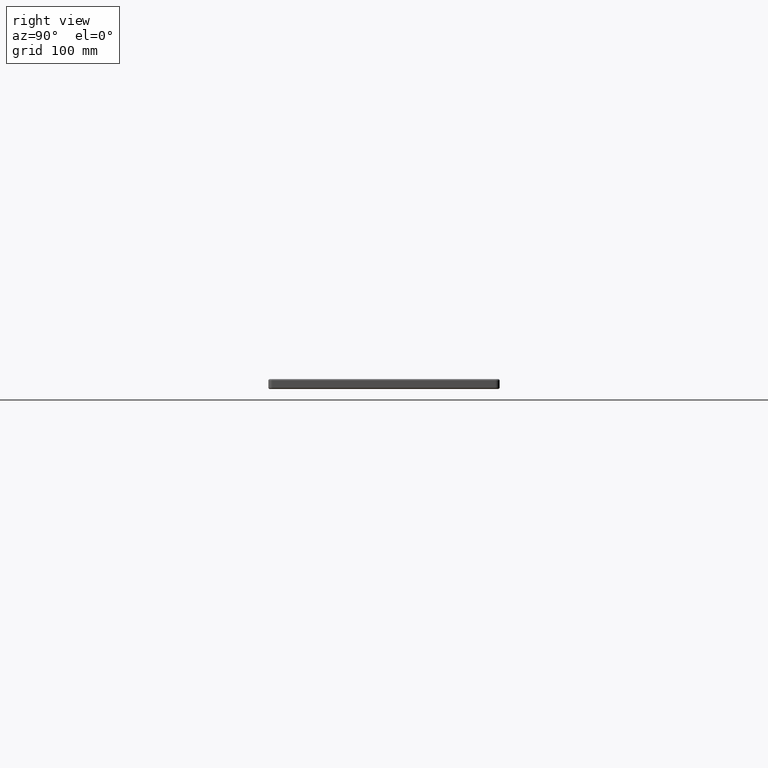
[diagram: clean part render]
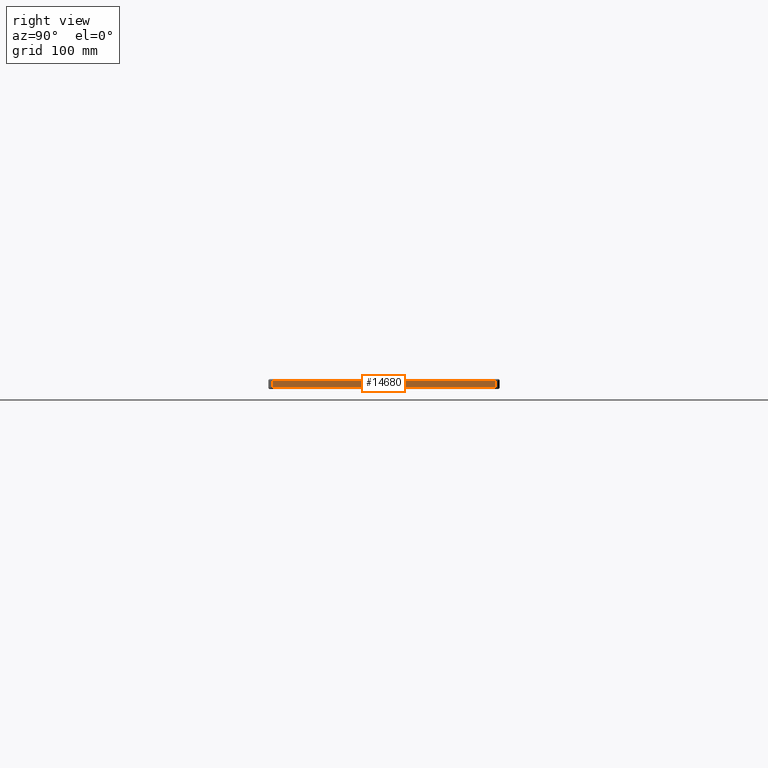
[diagram: same view with one face highlighted and labeled with its STEP entity id]
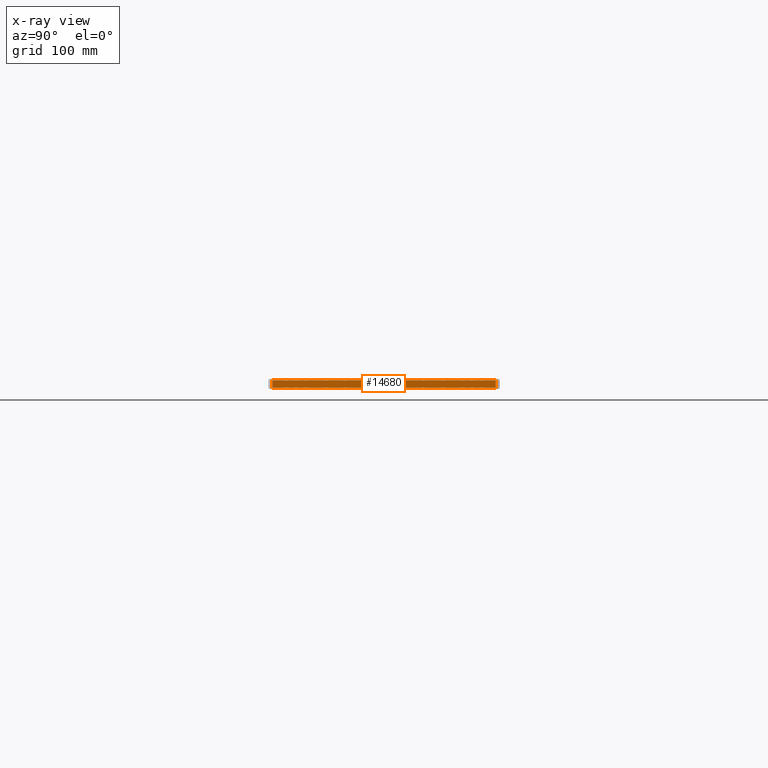
[diagram: x-ray of the same camera — body ghosted, the highlighted face saturated]
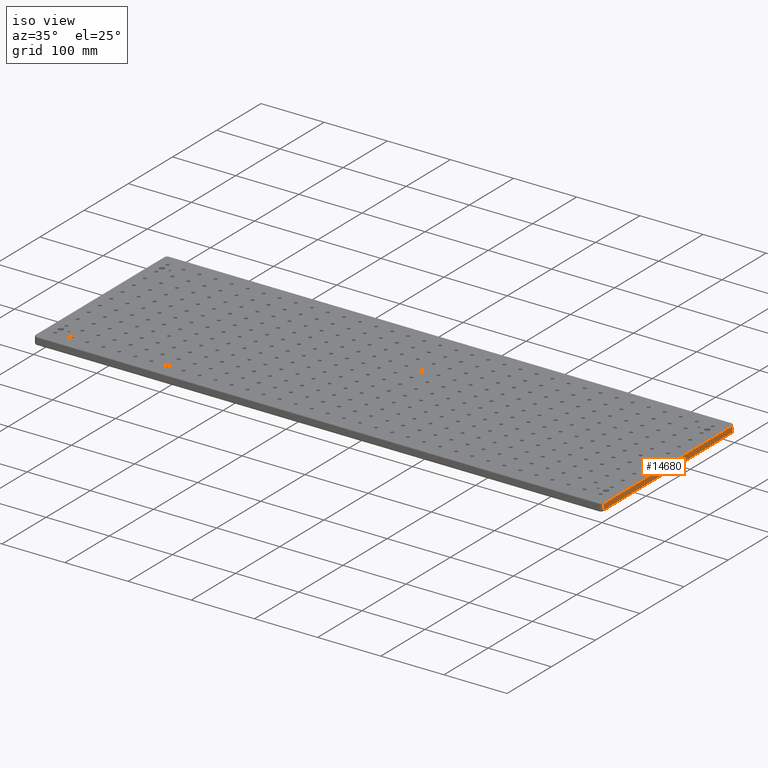
[diagram: same view with one face highlighted and labeled with its STEP entity id]
A machine part, right view. The second image highlights one B-rep face of the part: STEP entity #14680.
The next image is the same camera in x-ray: the body ghosted, the highlighted face saturated — about 0% of this face is hidden behind the body in this view.
A second angle (iso view) of the same face is appended — the face is thin or edge-on in the first view.
In plain terms, the highlighted planar face has unit normal (1, 0, 0).
Its self-contained STEP definition (entity closure, byte-faithful):
#648 = ORIENTED_EDGE ( 'NONE', *, *, #9998, .T. ) ;
#2020 = LINE ( 'NONE', #21178, #11802 ) ;
#2578 = EDGE_CURVE ( 'NONE', #16398, #12156, #2020, .T. ) ;
#2893 = DIRECTION ( 'NONE',  ( 0.0000000000000000000, -0.0000000000000000000, -1.000000000000000000 ) ) ;
#4339 = VERTEX_POINT ( 'NONE', #12115 ) ;
#5405 = VECTOR ( 'NONE', #2893, 1000.000000000000000 ) ;
#6189 = EDGE_LOOP ( 'NONE', ( #26241, #28470, #648, #21658 ) ) ;
#8838 = EDGE_CURVE ( 'NONE', #4339, #20261, #27867, .T. ) ;
#8998 = CARTESIAN_POINT ( 'NONE',  ( 900.0000000000000000, 294.9999999999999400, -2.000000000000000000 ) ) ;
#9998 = EDGE_CURVE ( 'NONE', #20261, #16398, #25410, .T. ) ;
#10849 = CARTESIAN_POINT ( 'NONE',  ( 900.0000000000000000, 294.9999999999999400, -11.00000000000000000 ) ) ;
#10879 = FACE_OUTER_BOUND ( 'NONE', #6189, .T. ) ;
#11802 = VECTOR ( 'NONE', #12603, 1000.000000000000000 ) ;
#12115 = CARTESIAN_POINT ( 'NONE',  ( 900.0000000000000000, 4.999999999999999100, -11.00000000000000000 ) ) ;
#12156 = VERTEX_POINT ( 'NONE', #19128 ) ;
#12603 = DIRECTION ( 'NONE',  ( -0.0000000000000000000, -1.000000000000000000, 0.0000000000000000000 ) ) ;
#14011 = EDGE_CURVE ( 'NONE', #12156, #4339, #30140, .T. ) ;
#14680 = ADVANCED_FACE ( 'NONE', ( #10879 ), #24833, .T. ) ;
#16398 = VERTEX_POINT ( 'NONE', #8998 ) ;
#17913 = DIRECTION ( 'NONE',  ( 0.0000000000000000000, 0.0000000000000000000, -1.000000000000000000 ) ) ;
#19128 = CARTESIAN_POINT ( 'NONE',  ( 900.0000000000000000, 4.999999999999999100, -2.000000000000000000 ) ) ;
#19133 = CARTESIAN_POINT ( 'NONE',  ( 900.0000000000000000, 4.999999999999999100, -13.00000000000000000 ) ) ;
#19491 = DIRECTION ( 'NONE',  ( -0.0000000000000000000, 1.000000000000000000, 0.0000000000000000000 ) ) ;
#19832 = AXIS2_PLACEMENT_3D ( 'NONE', #22301, #22696, #17913 ) ;
#20261 = VERTEX_POINT ( 'NONE', #10849 ) ;
#20832 = DIRECTION ( 'NONE',  ( 0.0000000000000000000, 0.0000000000000000000, 1.000000000000000000 ) ) ;
#20927 = CARTESIAN_POINT ( 'NONE',  ( 900.0000000000000000, 294.9999999999999400, -13.00000000000000000 ) ) ;
#21030 = VECTOR ( 'NONE', #20832, 1000.000000000000000 ) ;
#21178 = CARTESIAN_POINT ( 'NONE',  ( 900.0000000000000000, 5.000000000000004400, -2.000000000000000000 ) ) ;
#21658 = ORIENTED_EDGE ( 'NONE', *, *, #2578, .T. ) ;
#22301 = CARTESIAN_POINT ( 'NONE',  ( 900.0000000000000000, 0.0000000000000000000, -13.00000000000000000 ) ) ;
#22696 = DIRECTION ( 'NONE',  ( 1.000000000000000000, 0.0000000000000000000, 0.0000000000000000000 ) ) ;
#24833 = PLANE ( 'NONE',  #19832 ) ;
#25410 = LINE ( 'NONE', #20927, #21030 ) ;
#26241 = ORIENTED_EDGE ( 'NONE', *, *, #14011, .T. ) ;
#27501 = VECTOR ( 'NONE', #19491, 1000.000000000000000 ) ;
#27867 = LINE ( 'NONE', #28669, #27501 ) ;
#28470 = ORIENTED_EDGE ( 'NONE', *, *, #8838, .T. ) ;
#28669 = CARTESIAN_POINT ( 'NONE',  ( 900.0000000000000000, 0.0000000000000000000, -11.00000000000000000 ) ) ;
#30140 = LINE ( 'NONE', #19133, #5405 ) ;